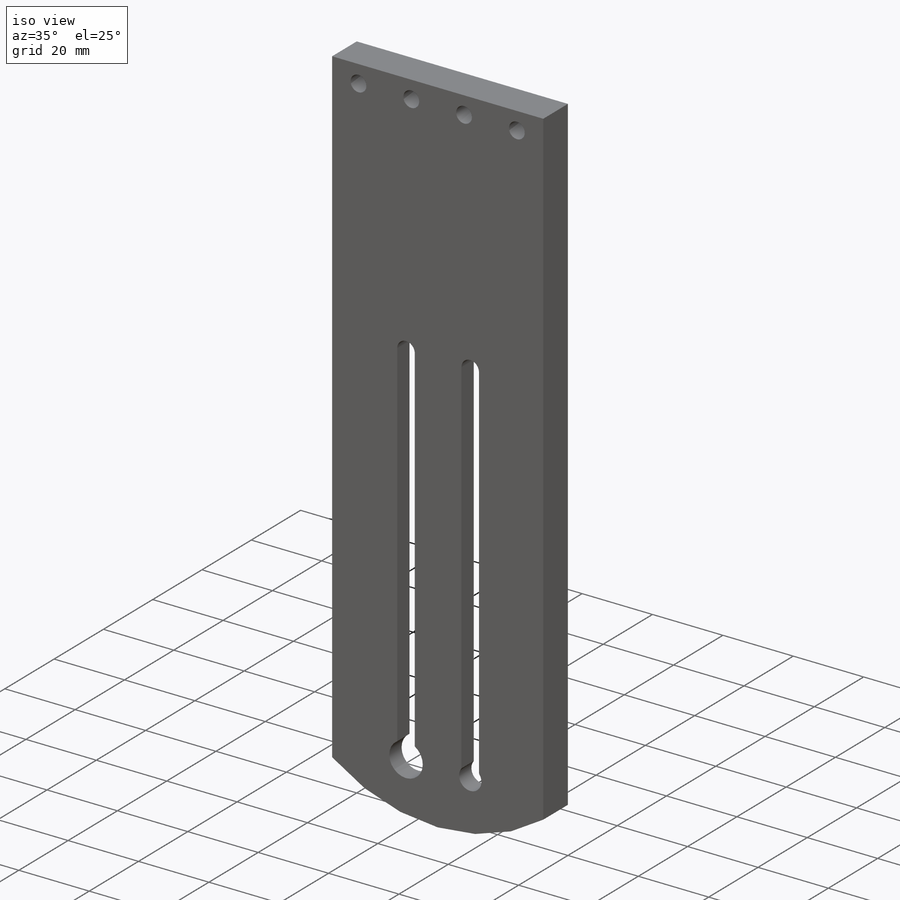
[diagram: iso view]
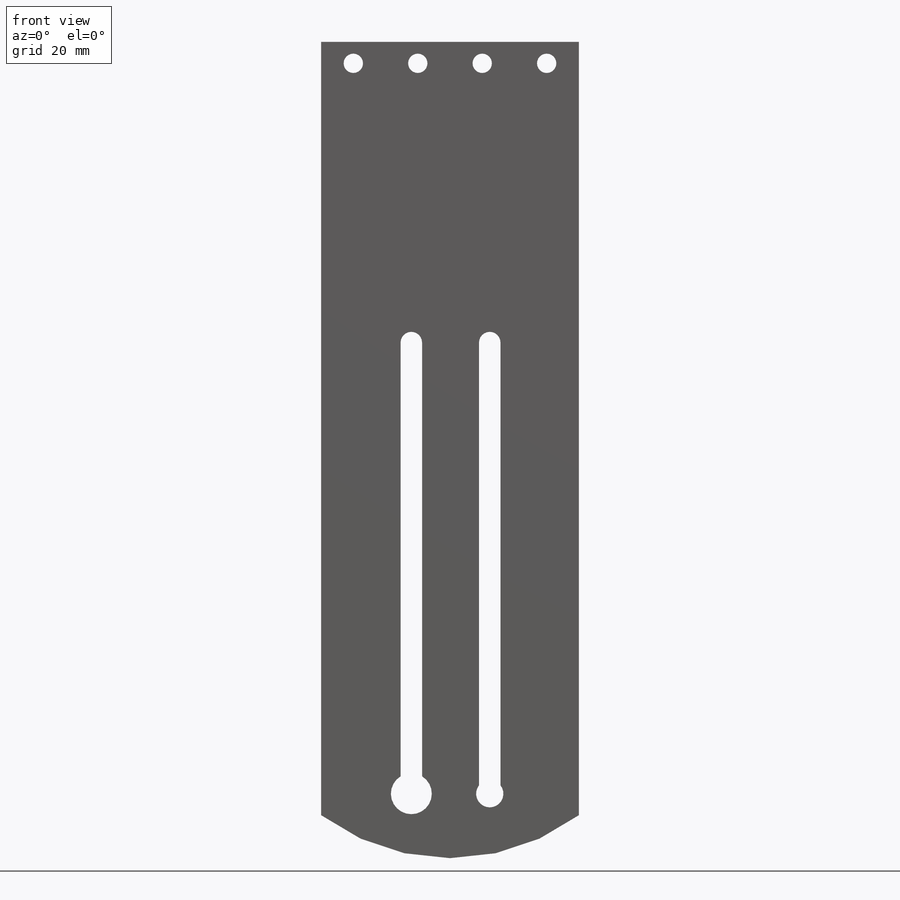
[diagram: front view]
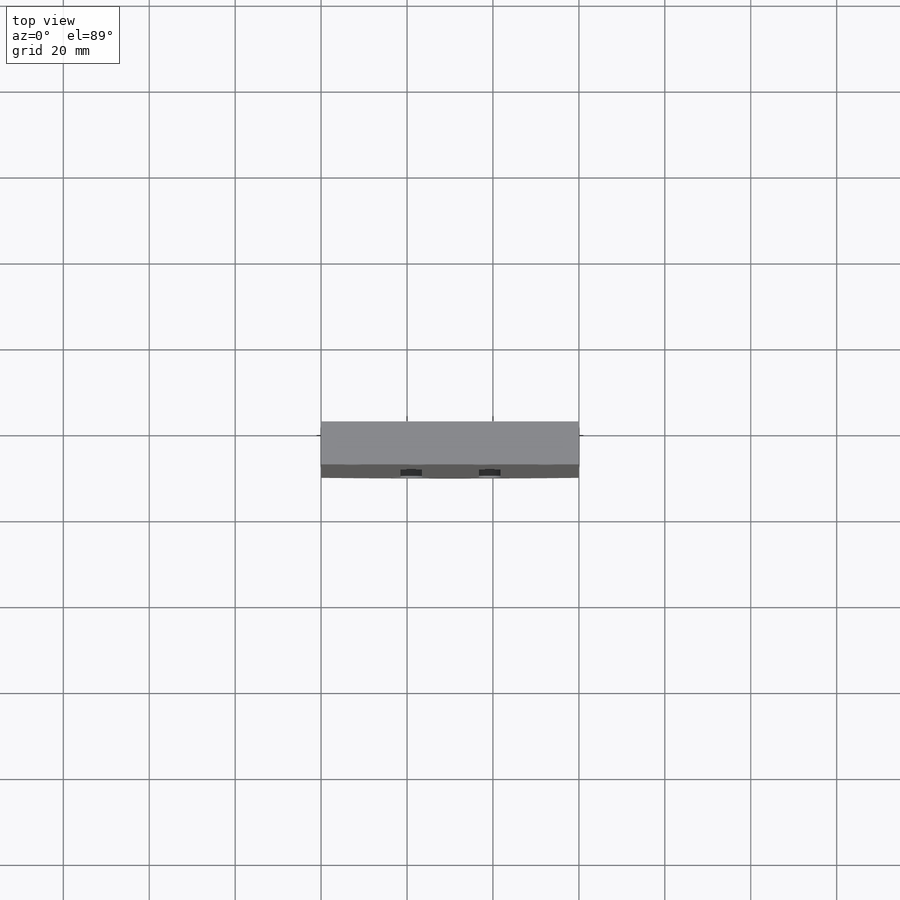
[diagram: top view]
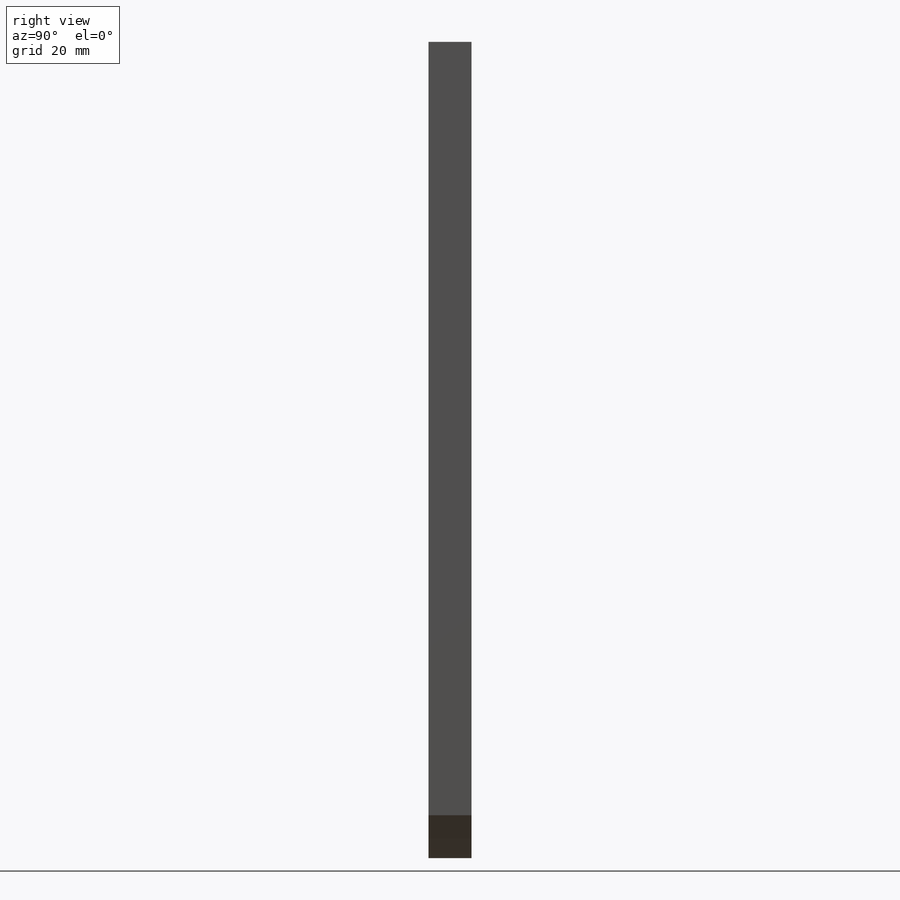
[diagram: right view]
SOLIDWORKS PART (.sldprt)
format: sldprt  version: not decoded by parser v0  size: 1,477,120 bytes
history: native  units: mm
features: sketch x25, cut_extrude x7, hole x6, thread x5, fillet x4, plane x3, extrude x3, material x1 (+8 scaffold rows collapsed)
feature tree (62):
  scaffold x8  (default folders/planes/origin — collapsed)
  material  "Сплав 2024"
  plane  "Спереди"
  plane  "Сверху"
  plane  "Справа"
  sketch  "Эскиз1"  dims[c1.D1=60.0mm c1.D2=190.0mm c1.D3=80.0mm c2.D1=60.0mm c2.D4=60.0mm c3.D1=60.0mm c3.D4=40.0mm c3.D5=60.0mm c4.D1=40.0mm c4.D4=60.0mm c4.D5=60.0mm c4.D6=90.0mm c4.D7=30.0mm c5.D7=110.0deg c5.D8=30.0mm c6.D8=110.0deg]
  extrude  "Бобышка-Вытянуть1"  Depth=10mm
  sketch  "Эскиз4"  dims[c1.D1=20.2mm c1.D2=40.0mm c1.D3=~3.658816mm c1.D4=~38.408816mm c2.D3=10.0mm c2.D2=15.0mm c2.D4=49.75mm]
  hole  "Цековка для винта с внутренним шестигранником M4"  [1 undecoded]
  sketch  "Эскиз7"
  sketch  "Эскиз8"  dims[Диаметр отверстия=4.5mm Глубина отверстия=9.999mm Диаметр цековки=8.0mm Глубина цековки=4.0mm Угол заточки сверла=118.0deg]
  sketch  "Эскиз9"  dims[D1=18.25mm D2=21.0mm D3=15.0mm]
  hole  "Диаметр отверстия 1/4 (0.25)1"  [1 undecoded]
  sketch  "Трехмерный эскиз1"
  sketch  "Эскиз10"  dims[hole-wizard template sketch: 61 standard entries collapsed; hole parameters above]
  hole  "Диаметр отверстия 3/8 (0.375)1"  [1 undecoded]
  sketch  "Трехмерный эскиз2"
  sketch  "Эскиз11"  dims[hole-wizard template sketch: 61 standard entries collapsed; hole parameters above]
  sketch  "Эскиз12"  dims[D1=2.5mm D2=105.0mm D3=5.0mm]
  cut_extrude  "Вырез-Вытянуть1"  [1 undecoded]
  sketch  "Эскиз14"  dims[D1=20.2mm D2=40.0mm D3=15.0mm]
  sketch  "Эскиз15"  dims[c1.D1=6.0mm c1.D2=4.0mm c1.D3=4.0mm c1.D4=4.0mm c2.D3=~4.899199mm c3.D3=90.0deg c3.D4=1.0mm c4.D3=1.0mm c4.D5=1.0mm c4.D6=1.0mm c5.D3=2.0mm c6.D3=45.0deg c6.D2=6.0mm]
  cut_extrude  "Вырез-Вытянуть2"  Depth=7mm
  cut_extrude  "Вырез-Вытянуть3"  Depth=7mm
  sketch  "Эскиз16"  dims[D2=50.0mm D1=5.0mm D3=140.0mm]
  cut_extrude  "Вырез-Вытянуть4"  [1 undecoded]
  sketch  "Эскиз19"  dims[c1.D1=~4.304598mm c1.D3=2.0mm c2.D1=3.0mm c2.D2=46.0mm c3.D1=4.0mm c3.D2=3.0mm c3.D3=13.0mm c3.D4=4.0mm c4.D3=3.0mm]
  cut_extrude  "Вырез-Вытянуть7"  Depth=7mm
  sketch  "Эскиз20"  dims[D2=3.0mm D3=3.0mm D4=4.0mm D1=3.0mm]
  cut_extrude  "Вырез-Вытянуть8"  Depth=5mm
  sketch  "Эскиз18"  dims[c1.D1=3.0mm c1.D2=4.0mm c1.D3=4.0mm c1.D4=15.0mm c2.D2=12.9mm]
  cut_extrude  "Вырез-Вытянуть6"  Depth=5mm
  fillet  "Скругление1"  Radius=3mm
  sketch  "Эскиз21"  dims[D3=2.5mm D4=5.0mm D1=14.2mm D2=13.0mm]
  extrude  "Бобышка-Вытянуть2"  Depth=3mm
  hole  "Отверстие обработанное метчиком M2.5x0.451"  [1 undecoded]
  sketch  "Эскиз24"
  sketch  "Эскиз22"  dims[hole-wizard template sketch: 50 standard entries collapsed; hole parameters above]
  thread  "Отверстие резьбы1"  Diameter=4mm  [1 undecoded]
  thread  "Отверстие резьбы2"  Diameter=4mm  [1 undecoded]
  fillet  "Скругление2"  Radius=3mm
  sketch  "Эскиз25"  dims[D1=2.0mm D2=3.0mm D3=2.0mm]
  sketch  "Эскиз27"  dims[c1.D1=5.0mm c1.D2=4.0mm c1.D3=5.0mm c2.D2=~8.267887mm c3.D2=90.0deg c4.D2=4.0mm c4.D3=2.0mm]
  extrude  "Бобышка-Вытянуть3"  [1 undecoded]
  fillet  "Скругление4"  Radius=3mm
  fillet  "Скругление5"  Radius=3mm
  hole  "Отверстие обработанное метчиком M3x0.51"  [1 undecoded]
  sketch  "Эскиз32"
  sketch  "Эскиз31"  dims[hole-wizard template sketch: 50 standard entries collapsed; hole parameters above]
  thread  "Отверстие резьбы3"  Diameter=7mm  [1 undecoded]
  thread  "Отверстие резьбы4"  Diameter=7mm  [1 undecoded]
  thread  "Отверстие резьбы5"  Diameter=7mm  [1 undecoded]
  hole  "Отверстие с зазором M31"  [1 undecoded]
  sketch  "Эскиз33"
  sketch  "Эскиз34"  dims[Диаметр отверстия=3.4mm Глубина отверстия=3.0mm Угол заточки сверла=118.0deg]
decode coverage: 35 of 50 modeling features carry decoded parameters
note: ~ marks probable driven/reference dimensions
note: 14 parameter values undecoded
summary: no parameter record found for 9 features
note: suppression state not decoded; provenance and decode notes live in map.json
